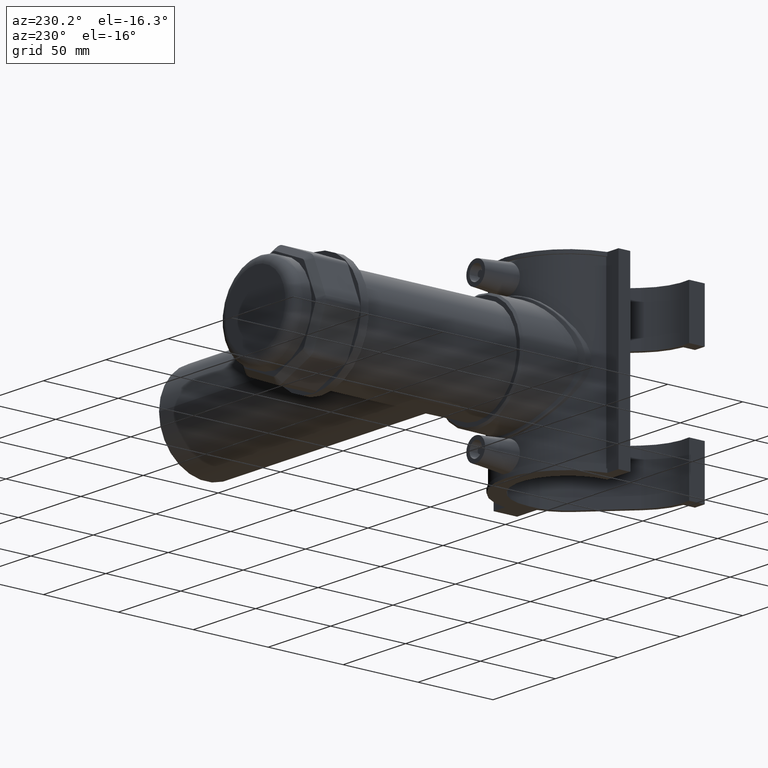
[diagram: clean part render]
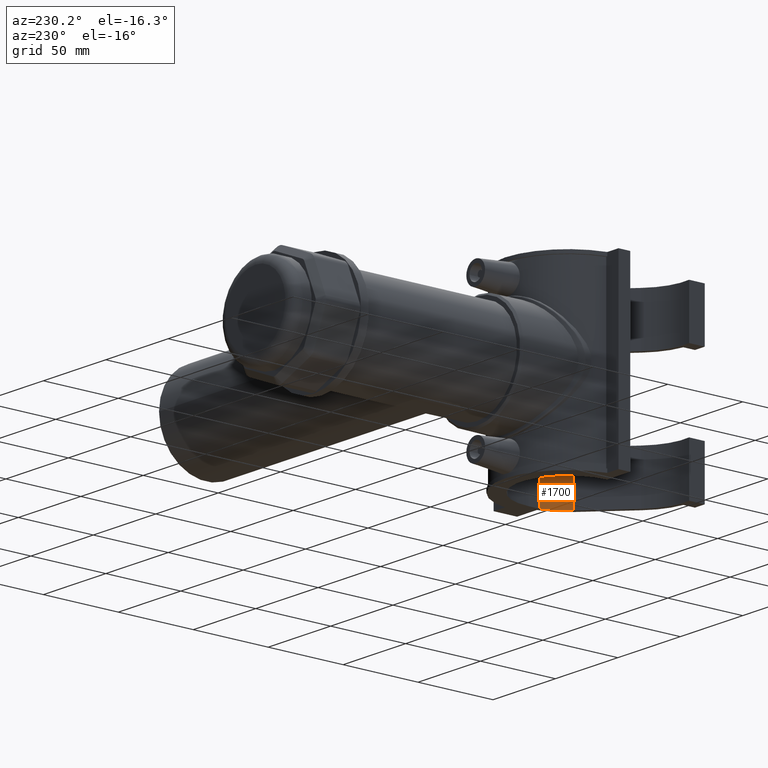
[diagram: same view with one face highlighted and labeled with its STEP entity id]
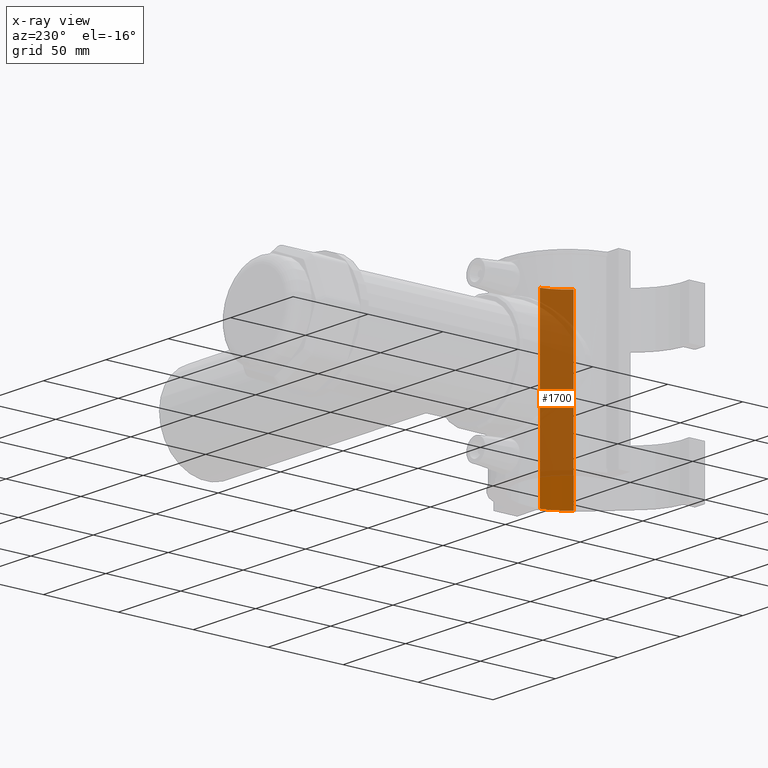
[diagram: x-ray of the same camera — body ghosted, the highlighted face saturated]
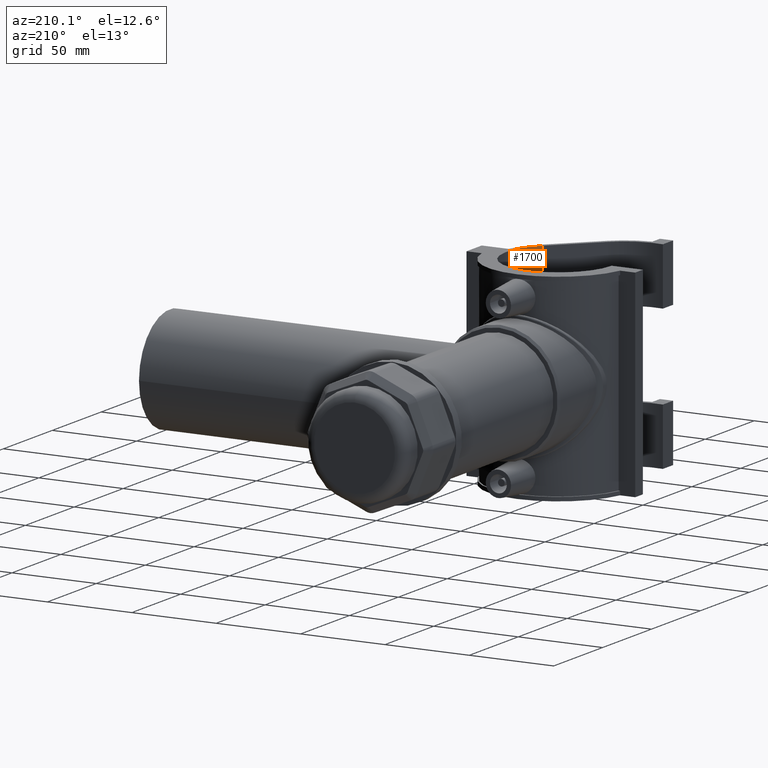
[diagram: same view with one face highlighted and labeled with its STEP entity id]
A machine part, auxiliary view. The second image highlights one B-rep face of the part: STEP entity #1700.
The next image is the same camera in x-ray: the body ghosted, the highlighted face saturated — about 85% of this face is hidden behind the body in this view.
A second angle (auxiliary view) of the same face is appended — the face is thin or edge-on in the first view.
In plain terms, the highlighted cylindrical surface (partial cylindrical patch) has radius 32.3751 mm, axis along (0, 0, -1).
Its self-contained STEP definition (entity closure, byte-faithful):
#130=LINE('',#3453,#269);
#159=LINE('',#3520,#298);
#161=LINE('',#3525,#300);
#269=VECTOR('',#2294,59.);
#298=VECTOR('',#2359,118.);
#300=VECTOR('',#2365,59.);
#385=CYLINDRICAL_SURFACE('',#1879,32.375103956558);
#486=FACE_OUTER_BOUND('',#624,.T.);
#624=EDGE_LOOP('',(#1493,#1494,#1495,#1496,#1497));
#702=CIRCLE('',#1880,32.375103956558);
#703=CIRCLE('',#1881,32.375103956558);
#833=VERTEX_POINT('',#3445);
#835=VERTEX_POINT('',#3452);
#854=VERTEX_POINT('',#3517);
#855=VERTEX_POINT('',#3519);
#856=VERTEX_POINT('',#3524);
#1041=EDGE_CURVE('',#833,#835,#130,.T.);
#1074=EDGE_CURVE('',#855,#854,#159,.T.);
#1076=EDGE_CURVE('',#835,#854,#702,.T.);
#1077=EDGE_CURVE('',#856,#833,#161,.T.);
#1078=EDGE_CURVE('',#855,#856,#703,.T.);
#1493=ORIENTED_EDGE('',*,*,#1076,.F.);
#1494=ORIENTED_EDGE('',*,*,#1041,.F.);
#1495=ORIENTED_EDGE('',*,*,#1077,.F.);
#1496=ORIENTED_EDGE('',*,*,#1078,.F.);
#1497=ORIENTED_EDGE('',*,*,#1074,.T.);
#1700=ADVANCED_FACE('',(#486),#385,.F.);
#1879=AXIS2_PLACEMENT_3D('',#3522,#2361,#2362);
#1880=AXIS2_PLACEMENT_3D('',#3523,#2363,#2364);
#1881=AXIS2_PLACEMENT_3D('',#3526,#2366,#2367);
#2294=DIRECTION('',(0.,0.,-1.));
#2359=DIRECTION('',(0.,0.,-1.));
#2361=DIRECTION('center_axis',(0.,0.,-1.));
#2362=DIRECTION('ref_axis',(-0.707106780346934,0.707106782026161,0.));
#2363=DIRECTION('center_axis',(0.,0.,1.));
#2364=DIRECTION('ref_axis',(-0.707106780346934,0.707106782026161,0.));
#2365=DIRECTION('',(0.,0.,-1.));
#2366=DIRECTION('center_axis',(0.,0.,-1.));
#2367=DIRECTION('ref_axis',(-0.707106780346934,0.707106782026161,0.));
#3445=CARTESIAN_POINT('',(22.892655522119,-22.8926555764842,0.));
#3452=CARTESIAN_POINT('',(22.892655522119,-22.8926555764842,-59.));
#3453=CARTESIAN_POINT('',(22.892655522119,-22.8926555764842,59.));
#3517=CARTESIAN_POINT('',(31.4999603174353,-7.47662064023157,-59.));
#3519=CARTESIAN_POINT('',(31.4999603174353,-7.47662064023157,59.));
#3520=CARTESIAN_POINT('',(31.4999603174353,-7.47662064023157,59.));
#3522=CARTESIAN_POINT('Origin',(0.,0.,59.));
#3523=CARTESIAN_POINT('Origin',(0.,0.,-59.));
#3524=CARTESIAN_POINT('',(22.892655522119,-22.8926555764842,59.));
#3525=CARTESIAN_POINT('',(22.892655522119,-22.8926555764842,59.));
#3526=CARTESIAN_POINT('Origin',(0.,0.,59.));